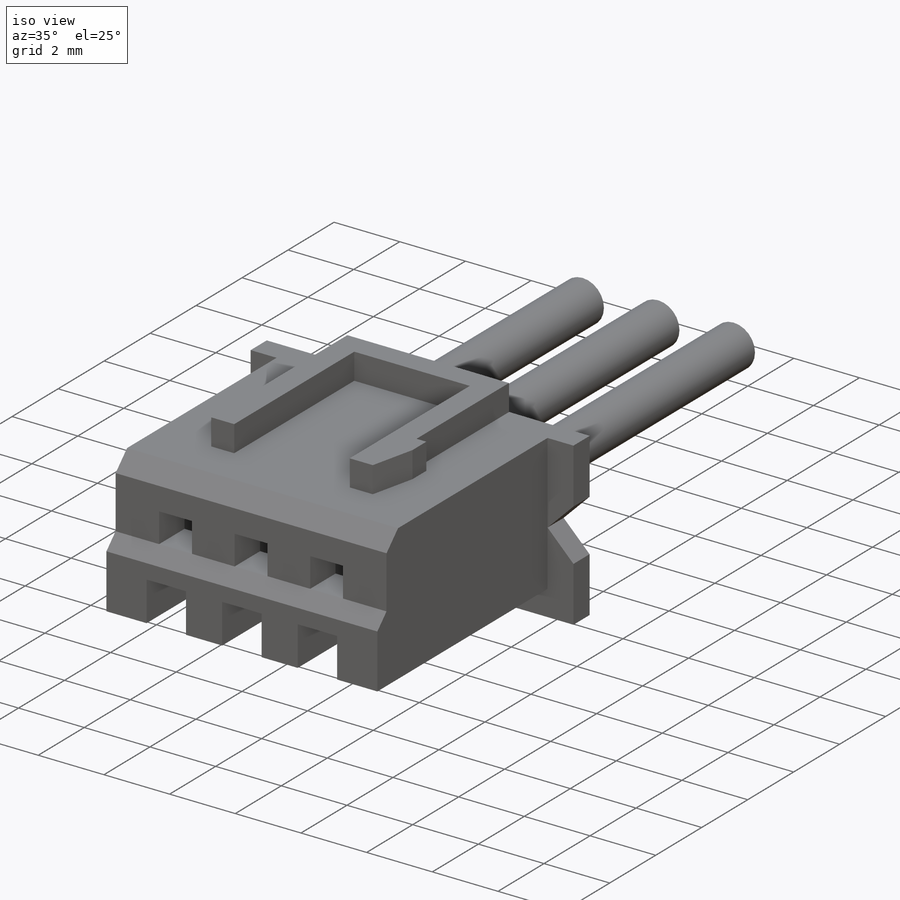
[diagram: iso view]
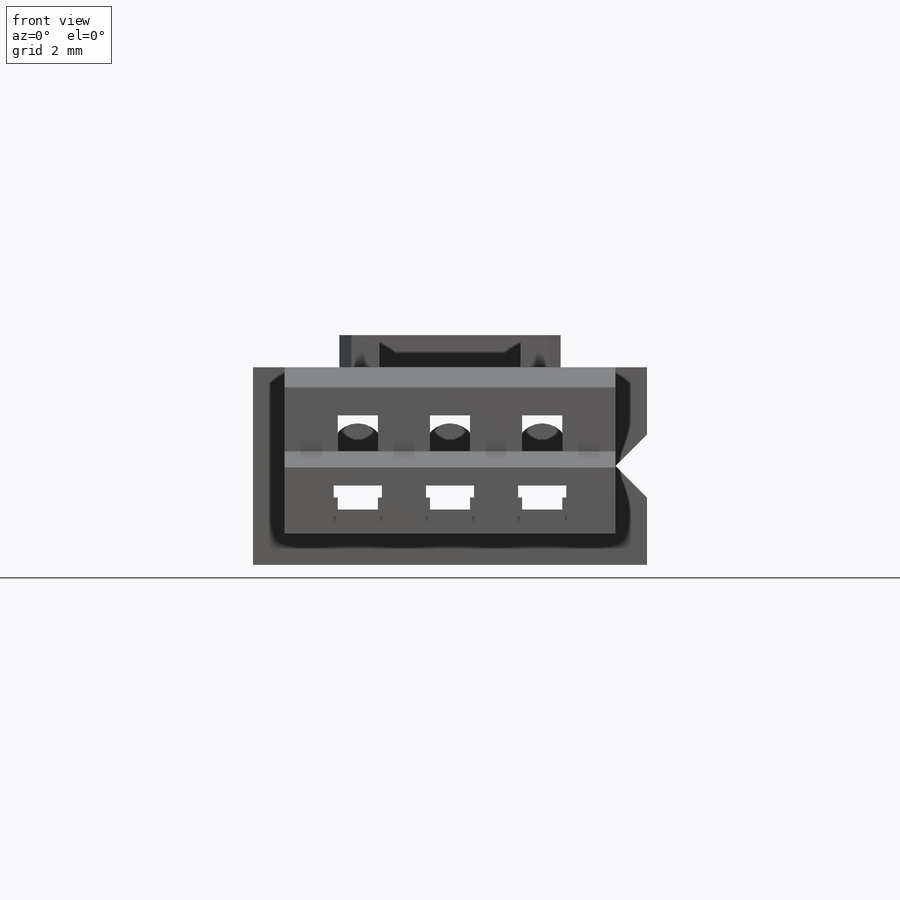
[diagram: front view]
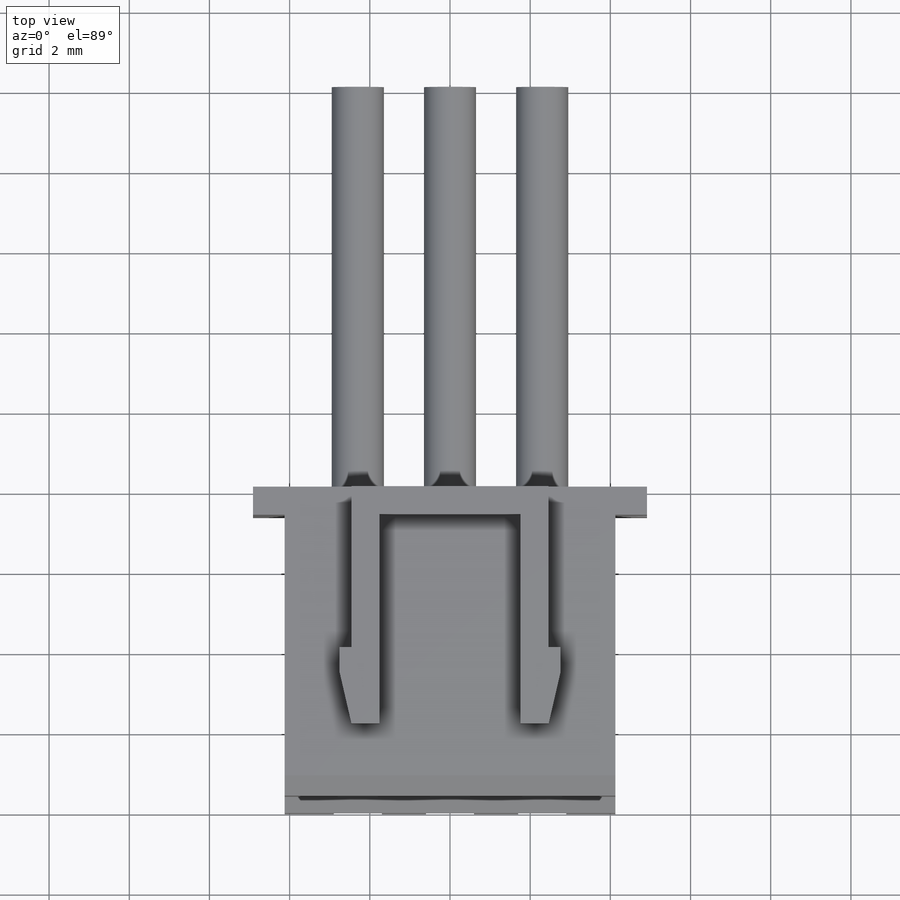
[diagram: top view]
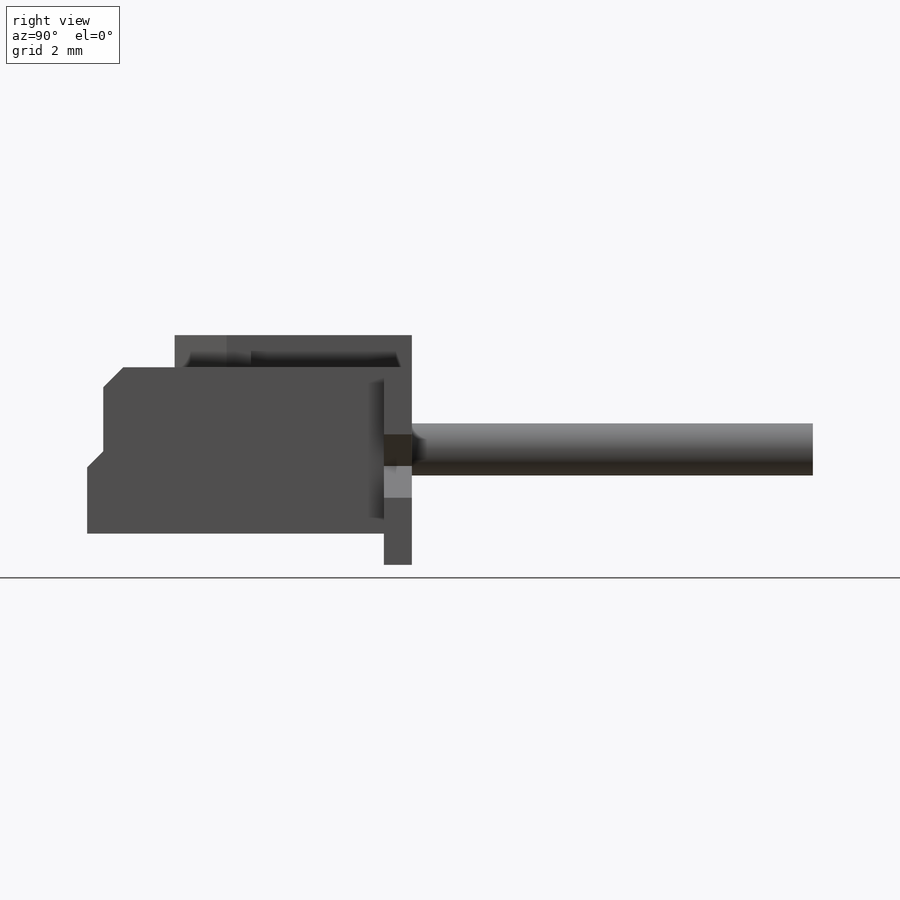
[diagram: right view]
SOLIDWORKS PART (.sldprt)
format: sldprt  version: not decoded by parser v0  size: 396,288 bytes
history: native  units: mm
features: sketch x7, extrude x4, plane x3, cut_extrude x3, material x1 (+10 scaffold rows collapsed)
feature tree (28):
  scaffold x10  (default folders/planes/origin — collapsed)
  material  "Matériau <non spécifié>"
  plane  "Plan de face"
  plane  "Plan de dessus"
  plane  "Plan de droite"
  sketch  "Esquisse1"  dims[c1.D1=~49.362264mm c1.D2=~77.158491mm c2.D1=4.15mm c2.D2=8.25mm c2.D3=2.5mm c2.D4=~1.007282mm c2.D5=~1.168447mm c3.D4=~0.811731mm c3.D5=~0.879592mm c4.D4=~0.879592mm c4.D5=~1.003882mm c5.D4=4.6mm c5.D5=1.0mm c5.D6=0.9mm]
  extrude  "Boss.-Extru.1"  Depth=8.1mm
  sketch  "Esquisse2"  dims[c1.D1=~6.740415mm c1.D2=~10.826254mm c2.D1=9.83mm c2.D2=4.93mm c2.D3=0.9mm c2.D4=5.6mm c3.D3=~1.140738mm]
  extrude  "Boss.-Extru.2"  Depth=0.7mm
  sketch  "Esquisse3"  dims[c1.D1=~2.400541mm c1.D2=~2.25075mm c2.D1=~0.76749mm c2.D2=~0.614447mm c3.D1=~2.630879mm c3.D2=~1.777084mm c4.D1=~0.566055mm c4.D2=~0.397114mm c5.D1=~2.333506mm c5.D2=~1.767157mm c6.D1=~0.565887mm c6.D2=~0.595671mm c7.D1=0.4mm c7.D2=0.6mm c7.D3=1.0mm c7.D4=0.6mm c7.D5=0.3mm]
  cut_extrude  "Enlèv. mat.-Extru.1"  Depth=1.5mm
  sketch  "Esquisse4"  dims[c1.D1=~2.493632mm c1.D2=~0.847285mm c2.D1=1.7mm c2.D2=~1.065625mm c3.D2=45.0deg c3.D3=0.4mm c3.D4=~1.60594mm c4.D4=45.0deg c4.D5=0.5mm]
  cut_extrude  "Enlèv. mat.-Extru.2"  [1 undecoded]
  sketch  "Esquisse6"  dims[c1.D1=~0.987953mm c1.D2=1.1153mm c2.D1=~0.987953mm c2.D2=~1.48929mm c3.D1=~0.987953mm c3.D2=~1.339382mm c4.D1=1.2mm c4.D2=1.2mm]
  cut_extrude  "Enlèv. mat.-Extru.3"  Depth=3.1mm
  sketch  "Esquisse7"  dims[c1.D1=~3.841256mm c1.D2=~5.104812mm c2.D1=~3.797647mm c2.D2=~3.158123mm c3.D1=4.92mm c3.D2=0.7mm c3.D3=0.7mm c3.D4=5.92mm c3.D5=1.9mm c3.D6=1.0mm c3.D7=0.6mm]
  extrude  "Boss.-Extru.3"  Depth=0.8mm
  sketch  "Esquisse8"  dims[D1=1.3mm D2=0.4mm]
  extrude  "Boss.-Extru.4"  Depth=10mm
decode coverage: 13 of 14 modeling features carry decoded parameters
note: ~ marks probable driven/reference dimensions
note: 1 parameter value undecoded
note: suppression state not decoded; provenance and decode notes live in map.json
